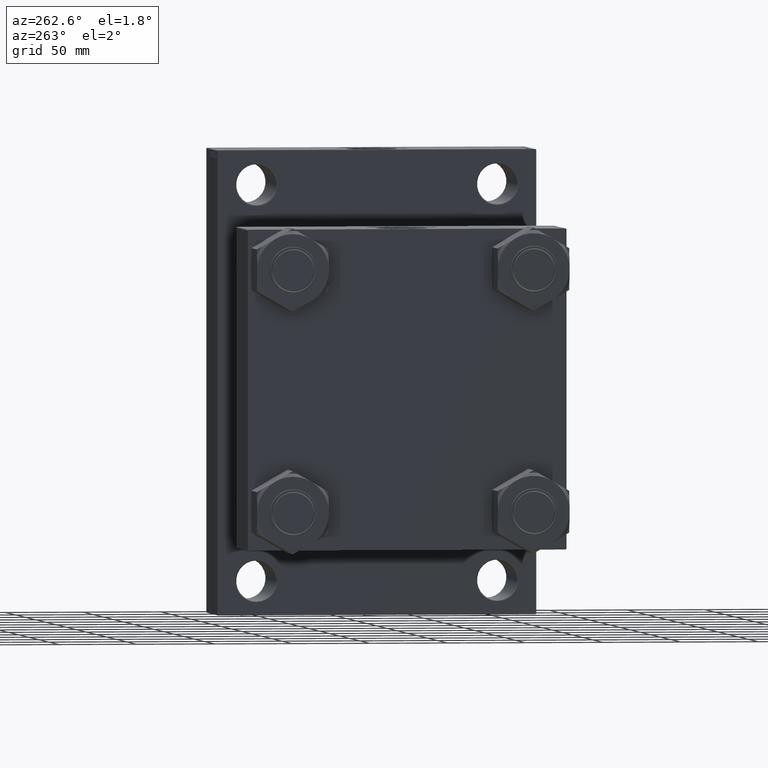
[diagram: clean part render]
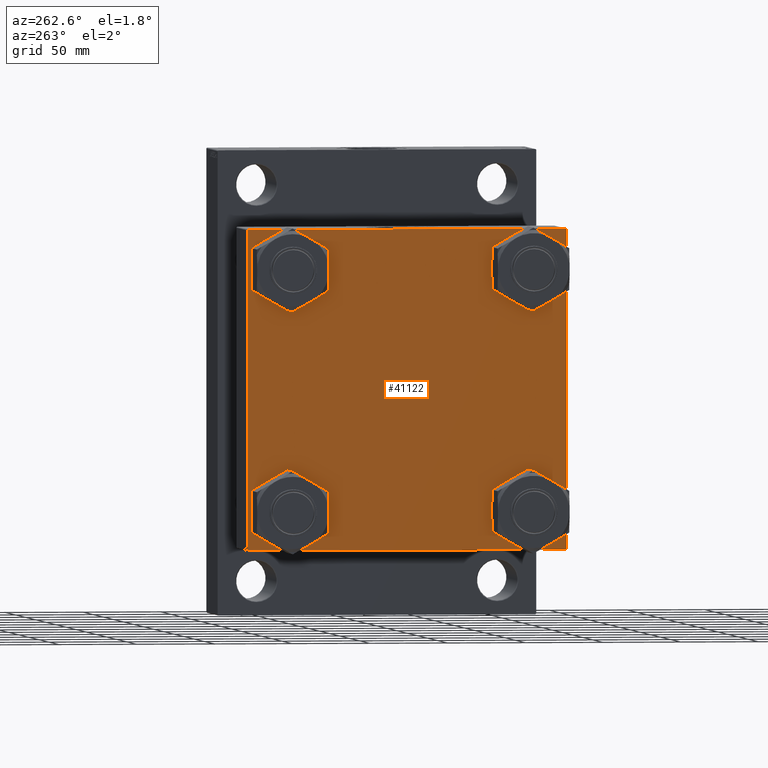
[diagram: same view with one face highlighted and labeled with its STEP entity id]
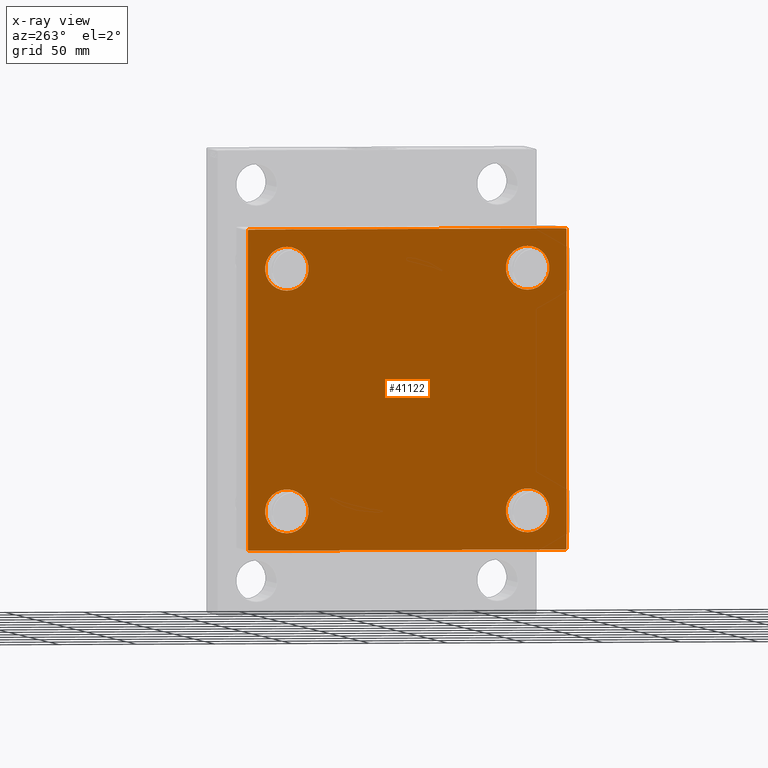
[diagram: x-ray of the same camera — body ghosted, the highlighted face saturated]
A machine part, auxiliary view. The second image highlights one B-rep face of the part: STEP entity #41122.
The next image is the same camera in x-ray: the body ghosted, the highlighted face saturated — about 0% of this face is hidden behind the body in this view.
In plain terms, the highlighted planar face has unit normal (-1, 0, 0).
Its self-contained STEP definition (entity closure, byte-faithful):
#160 = CARTESIAN_POINT ( 'NONE',  ( 0.000000000000000000, -102.4999999999999858, 102.4999999999999858 ) ) ;
#355 = CARTESIAN_POINT ( 'NONE',  ( 0.000000000000000000, 102.5000000000000000, -102.4999999999999289 ) ) ;
#483 = VECTOR ( 'NONE', #29575, 1000.000000000000000 ) ;
#782 = ORIENTED_EDGE ( 'NONE', *, *, #38938, .T. ) ;
#1293 = VECTOR ( 'NONE', #2502, 1000.000000000000114 ) ;
#2375 = ORIENTED_EDGE ( 'NONE', *, *, #34543, .T. ) ;
#2502 = DIRECTION ( 'NONE',  ( 0.000000000000000000, 0.7071067811865474617, -0.7071067811865474617 ) ) ;
#2911 = LINE ( 'NONE', #36899, #35924 ) ;
#3024 = AXIS2_PLACEMENT_3D ( 'NONE', #40548, #18148, #24903 ) ;
#3939 = EDGE_LOOP ( 'NONE', ( #43239, #21738, #782, #18421, #21828, #30764, #33363, #2375 ) ) ;
#4684 = CARTESIAN_POINT ( 'NONE',  ( 0.000000000000000000, -77.44999999999997442, -77.45000000000000284 ) ) ;
#5378 = CARTESIAN_POINT ( 'NONE',  ( 0.000000000000000000, 77.45000000000000284, -77.44999999999998863 ) ) ;
#5828 = ORIENTED_EDGE ( 'NONE', *, *, #19445, .T. ) ;
#6474 = AXIS2_PLACEMENT_3D ( 'NONE', #18266, #32974, #26908 ) ;
#6782 = EDGE_LOOP ( 'NONE', ( #5828, #18999 ) ) ;
#6899 = VERTEX_POINT ( 'NONE', #34591 ) ;
#6922 = AXIS2_PLACEMENT_3D ( 'NONE', #28210, #46764, #42904 ) ;
#7071 = CARTESIAN_POINT ( 'NONE',  ( 0.000000000000000000, -101.9999999999999716, 102.4999999999999858 ) ) ;
#7092 = DIRECTION ( 'NONE',  ( 0.000000000000000000, 0.000000000000000000, 1.000000000000000000 ) ) ;
#7477 = EDGE_CURVE ( 'NONE', #44345, #15895, #40497, .T. ) ;
#8020 = EDGE_CURVE ( 'NONE', #36200, #31079, #28978, .T. ) ;
#8186 = AXIS2_PLACEMENT_3D ( 'NONE', #42162, #23627, #45300 ) ;
#8435 = CIRCLE ( 'NONE', #23817, 14.00000000000012434 ) ;
#8460 = VERTEX_POINT ( 'NONE', #23111 ) ;
#8489 = CARTESIAN_POINT ( 'NONE',  ( 0.000000000000000000, 77.45000000000000284, 77.44999999999998863 ) ) ;
#8590 = FACE_BOUND ( 'NONE', #21911, .T. ) ;
#9024 = LINE ( 'NONE', #38426, #35736 ) ;
#9490 = EDGE_CURVE ( 'NONE', #31587, #36200, #2911, .T. ) ;
#9933 = VERTEX_POINT ( 'NONE', #22383 ) ;
#10084 = AXIS2_PLACEMENT_3D ( 'NONE', #8489, #27035, #37896 ) ;
#11860 = CARTESIAN_POINT ( 'NONE',  ( 0.000000000000000000, 77.45000000000000284, -63.44999999999986784 ) ) ;
#11970 = DIRECTION ( 'NONE',  ( -1.000000000000000000, 0.000000000000000000, -0.000000000000000000 ) ) ;
#12635 = CIRCLE ( 'NONE', #6474, 14.00000000000012434 ) ;
#12845 = CIRCLE ( 'NONE', #33635, 14.00000000000012434 ) ;
#12961 = EDGE_CURVE ( 'NONE', #9933, #16842, #13565, .T. ) ;
#13228 = VERTEX_POINT ( 'NONE', #20510 ) ;
#13565 = LINE ( 'NONE', #45858, #19107 ) ;
#13980 = EDGE_LOOP ( 'NONE', ( #15291, #47368 ) ) ;
#14984 = VERTEX_POINT ( 'NONE', #15414 ) ;
#15291 = ORIENTED_EDGE ( 'NONE', *, *, #15712, .T. ) ;
#15414 = CARTESIAN_POINT ( 'NONE',  ( 0.000000000000000000, -77.44999999999997442, 91.45000000000013074 ) ) ;
#15712 = EDGE_CURVE ( 'NONE', #13228, #43901, #26896, .T. ) ;
#15781 = DIRECTION ( 'NONE',  ( 1.000000000000000000, -0.000000000000000000, 0.000000000000000000 ) ) ;
#15895 = VERTEX_POINT ( 'NONE', #11860 ) ;
#16301 = DIRECTION ( 'NONE',  ( -0.000000000000000000, 0.000000000000000000, 1.000000000000000000 ) ) ;
#16658 = VERTEX_POINT ( 'NONE', #17205 ) ;
#16713 = DIRECTION ( 'NONE',  ( 0.000000000000000000, -1.000000000000000000, -1.353930517835556973E-16 ) ) ;
#16842 = VERTEX_POINT ( 'NONE', #7071 ) ;
#17205 = CARTESIAN_POINT ( 'NONE',  ( 0.000000000000000000, 102.0000000000000000, 102.5000000000000142 ) ) ;
#17787 = CARTESIAN_POINT ( 'NONE',  ( 0.000000000000000000, -77.44999999999997442, 63.44999999999988205 ) ) ;
#18148 = DIRECTION ( 'NONE',  ( 1.000000000000000000, -0.000000000000000000, 0.000000000000000000 ) ) ;
#18211 = VECTOR ( 'NONE', #39820, 1000.000000000000114 ) ;
#18266 = CARTESIAN_POINT ( 'NONE',  ( 0.000000000000000000, -77.44999999999997442, -77.45000000000000284 ) ) ;
#18421 = ORIENTED_EDGE ( 'NONE', *, *, #23273, .T. ) ;
#18842 = CARTESIAN_POINT ( 'NONE',  ( 0.000000000000000000, 102.5000000000000000, 102.0000000000000142 ) ) ;
#18999 = ORIENTED_EDGE ( 'NONE', *, *, #29376, .T. ) ;
#19107 = VECTOR ( 'NONE', #27796, 999.9999999999998863 ) ;
#19145 = AXIS2_PLACEMENT_3D ( 'NONE', #5378, #31185, #45865 ) ;
#19445 = EDGE_CURVE ( 'NONE', #14984, #23236, #27686, .T. ) ;
#19673 = PLANE ( 'NONE',  #40819 ) ;
#20510 = CARTESIAN_POINT ( 'NONE',  ( 0.000000000000000000, 77.45000000000000284, 91.45000000000011653 ) ) ;
#20793 = ORIENTED_EDGE ( 'NONE', *, *, #37491, .T. ) ;
#20836 = LINE ( 'NONE', #24699, #1293 ) ;
#21738 = ORIENTED_EDGE ( 'NONE', *, *, #8020, .T. ) ;
#21828 = ORIENTED_EDGE ( 'NONE', *, *, #31997, .F. ) ;
#21911 = EDGE_LOOP ( 'NONE', ( #20793, #38611 ) ) ;
#22312 = DIRECTION ( 'NONE',  ( 0.000000000000000000, -1.000000000000000000, -2.030895776753335460E-16 ) ) ;
#22361 = ORIENTED_EDGE ( 'NONE', *, *, #39052, .T. ) ;
#22383 = CARTESIAN_POINT ( 'NONE',  ( 0.000000000000000000, -102.4999999999999858, 101.9999999999999574 ) ) ;
#22595 = FACE_BOUND ( 'NONE', #24290, .T. ) ;
#23111 = CARTESIAN_POINT ( 'NONE',  ( 0.000000000000000000, -101.9999999999999147, -102.4999999999999716 ) ) ;
#23236 = VERTEX_POINT ( 'NONE', #17787 ) ;
#23273 = EDGE_CURVE ( 'NONE', #8460, #6899, #9024, .T. ) ;
#23300 = FACE_BOUND ( 'NONE', #13980, .T. ) ;
#23426 = EDGE_CURVE ( 'NONE', #34058, #28784, #12635, .T. ) ;
#23526 = CARTESIAN_POINT ( 'NONE',  ( 0.000000000000000000, 0.000000000000000000, 0.000000000000000000 ) ) ;
#23627 = DIRECTION ( 'NONE',  ( 1.000000000000000000, -0.000000000000000000, 0.000000000000000000 ) ) ;
#23817 = AXIS2_PLACEMENT_3D ( 'NONE', #4684, #15781, #28228 ) ;
#24290 = EDGE_LOOP ( 'NONE', ( #22361, #37691 ) ) ;
#24699 = CARTESIAN_POINT ( 'NONE',  ( 0.000000000000000000, 102.2500000000000142, 102.2500000000000142 ) ) ;
#24903 = DIRECTION ( 'NONE',  ( 0.000000000000000000, 0.000000000000000000, 1.000000000000000000 ) ) ;
#25439 = VECTOR ( 'NONE', #16713, 1000.000000000000000 ) ;
#26624 = CARTESIAN_POINT ( 'NONE',  ( 0.000000000000000000, 77.45000000000000284, 63.44999999999986784 ) ) ;
#26896 = CIRCLE ( 'NONE', #3024, 14.00000000000012434 ) ;
#26908 = DIRECTION ( 'NONE',  ( 0.000000000000000000, 0.000000000000000000, 1.000000000000000000 ) ) ;
#27035 = DIRECTION ( 'NONE',  ( 1.000000000000000000, -0.000000000000000000, 0.000000000000000000 ) ) ;
#27686 = CIRCLE ( 'NONE', #6922, 14.00000000000012434 ) ;
#27796 = DIRECTION ( 'NONE',  ( -0.000000000000000000, 0.7071067811865376918, 0.7071067811865574537 ) ) ;
#28029 = CARTESIAN_POINT ( 'NONE',  ( 0.000000000000000000, 102.5000000000000000, 102.5000000000000142 ) ) ;
#28210 = CARTESIAN_POINT ( 'NONE',  ( 0.000000000000000000, -77.44999999999997442, 77.45000000000000284 ) ) ;
#28228 = DIRECTION ( 'NONE',  ( 0.000000000000000000, 0.000000000000000000, 1.000000000000000000 ) ) ;
#28784 = VERTEX_POINT ( 'NONE', #42328 ) ;
#28978 = LINE ( 'NONE', #43197, #18211 ) ;
#29376 = EDGE_CURVE ( 'NONE', #23236, #14984, #12845, .T. ) ;
#29554 = CARTESIAN_POINT ( 'NONE',  ( 0.000000000000000000, 102.5000000000000000, -101.9999999999999005 ) ) ;
#29575 = DIRECTION ( 'NONE',  ( 0.000000000000000000, 0.000000000000000000, -1.000000000000000000 ) ) ;
#29950 = VECTOR ( 'NONE', #22312, 1000.000000000000000 ) ;
#30309 = CARTESIAN_POINT ( 'NONE',  ( 0.000000000000000000, -77.44999999999997442, -91.45000000000013074 ) ) ;
#30725 = DIRECTION ( 'NONE',  ( 0.000000000000000000, -0.7071067811865474617, 0.7071067811865474617 ) ) ;
#30764 = ORIENTED_EDGE ( 'NONE', *, *, #12961, .T. ) ;
#30792 = CARTESIAN_POINT ( 'NONE',  ( 0.000000000000000000, 77.45000000000000284, -91.45000000000011653 ) ) ;
#31079 = VERTEX_POINT ( 'NONE', #38503 ) ;
#31185 = DIRECTION ( 'NONE',  ( 1.000000000000000000, -0.000000000000000000, 0.000000000000000000 ) ) ;
#31587 = VERTEX_POINT ( 'NONE', #18842 ) ;
#31997 = EDGE_CURVE ( 'NONE', #9933, #6899, #33200, .T. ) ;
#32974 = DIRECTION ( 'NONE',  ( 1.000000000000000000, -0.000000000000000000, 0.000000000000000000 ) ) ;
#33200 = LINE ( 'NONE', #160, #483 ) ;
#33363 = ORIENTED_EDGE ( 'NONE', *, *, #41542, .F. ) ;
#33635 = AXIS2_PLACEMENT_3D ( 'NONE', #39150, #40110, #7092 ) ;
#33771 = CIRCLE ( 'NONE', #19145, 14.00000000000012434 ) ;
#34058 = VERTEX_POINT ( 'NONE', #30309 ) ;
#34543 = EDGE_CURVE ( 'NONE', #16658, #31587, #20836, .T. ) ;
#34591 = CARTESIAN_POINT ( 'NONE',  ( 0.000000000000000000, -102.4999999999999858, -101.9999999999999005 ) ) ;
#35736 = VECTOR ( 'NONE', #30725, 1000.000000000000114 ) ;
#35924 = VECTOR ( 'NONE', #43877, 1000.000000000000000 ) ;
#36200 = VERTEX_POINT ( 'NONE', #29554 ) ;
#36899 = CARTESIAN_POINT ( 'NONE',  ( 0.000000000000000000, 102.5000000000000000, 102.5000000000000142 ) ) ;
#37491 = EDGE_CURVE ( 'NONE', #15895, #44345, #33771, .T. ) ;
#37691 = ORIENTED_EDGE ( 'NONE', *, *, #23426, .T. ) ;
#37762 = FACE_OUTER_BOUND ( 'NONE', #3939, .T. ) ;
#37896 = DIRECTION ( 'NONE',  ( 0.000000000000000000, 0.000000000000000000, 1.000000000000000000 ) ) ;
#38426 = CARTESIAN_POINT ( 'NONE',  ( 0.000000000000000000, -102.2499999999999289, -102.2499999999999289 ) ) ;
#38503 = CARTESIAN_POINT ( 'NONE',  ( 0.000000000000000000, 101.9999999999999716, -102.4999999999999289 ) ) ;
#38611 = ORIENTED_EDGE ( 'NONE', *, *, #7477, .T. ) ;
#38938 = EDGE_CURVE ( 'NONE', #31079, #8460, #44226, .T. ) ;
#39052 = EDGE_CURVE ( 'NONE', #28784, #34058, #8435, .T. ) ;
#39150 = CARTESIAN_POINT ( 'NONE',  ( 0.000000000000000000, -77.44999999999997442, 77.45000000000000284 ) ) ;
#39820 = DIRECTION ( 'NONE',  ( -0.000000000000000000, -0.7071067811865474617, -0.7071067811865474617 ) ) ;
#40110 = DIRECTION ( 'NONE',  ( 1.000000000000000000, -0.000000000000000000, 0.000000000000000000 ) ) ;
#40497 = CIRCLE ( 'NONE', #8186, 14.00000000000012434 ) ;
#40548 = CARTESIAN_POINT ( 'NONE',  ( 0.000000000000000000, 77.45000000000000284, 77.44999999999998863 ) ) ;
#40819 = AXIS2_PLACEMENT_3D ( 'NONE', #23526, #11970, #16301 ) ;
#41122 = ADVANCED_FACE ( 'NONE', ( #41600, #22595, #8590, #23300, #37762 ), #19673, .T. ) ;
#41542 = EDGE_CURVE ( 'NONE', #16658, #16842, #42009, .T. ) ;
#41600 = FACE_BOUND ( 'NONE', #6782, .T. ) ;
#42009 = LINE ( 'NONE', #28029, #25439 ) ;
#42162 = CARTESIAN_POINT ( 'NONE',  ( 0.000000000000000000, 77.45000000000000284, -77.44999999999998863 ) ) ;
#42328 = CARTESIAN_POINT ( 'NONE',  ( 0.000000000000000000, -77.44999999999997442, -63.44999999999988205 ) ) ;
#42904 = DIRECTION ( 'NONE',  ( 0.000000000000000000, 0.000000000000000000, 1.000000000000000000 ) ) ;
#43197 = CARTESIAN_POINT ( 'NONE',  ( 0.000000000000000000, 102.2499999999999574, -102.2499999999999574 ) ) ;
#43239 = ORIENTED_EDGE ( 'NONE', *, *, #9490, .T. ) ;
#43877 = DIRECTION ( 'NONE',  ( 0.000000000000000000, 0.000000000000000000, -1.000000000000000000 ) ) ;
#43901 = VERTEX_POINT ( 'NONE', #26624 ) ;
#44226 = LINE ( 'NONE', #355, #29950 ) ;
#44345 = VERTEX_POINT ( 'NONE', #30792 ) ;
#45300 = DIRECTION ( 'NONE',  ( 0.000000000000000000, 0.000000000000000000, 1.000000000000000000 ) ) ;
#45858 = CARTESIAN_POINT ( 'NONE',  ( -0.000000000000000000, -102.2500000000013785, 102.2499999999985363 ) ) ;
#45865 = DIRECTION ( 'NONE',  ( 0.000000000000000000, 0.000000000000000000, 1.000000000000000000 ) ) ;
#46274 = CIRCLE ( 'NONE', #10084, 14.00000000000012434 ) ;
#46731 = EDGE_CURVE ( 'NONE', #43901, #13228, #46274, .T. ) ;
#46764 = DIRECTION ( 'NONE',  ( 1.000000000000000000, -0.000000000000000000, 0.000000000000000000 ) ) ;
#47368 = ORIENTED_EDGE ( 'NONE', *, *, #46731, .T. ) ;